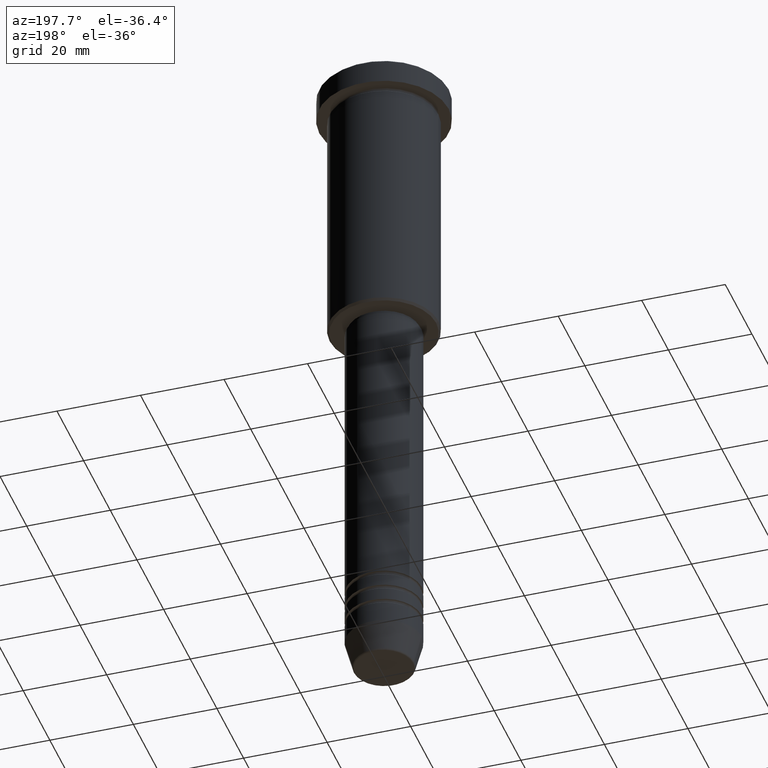
[diagram: clean part render]
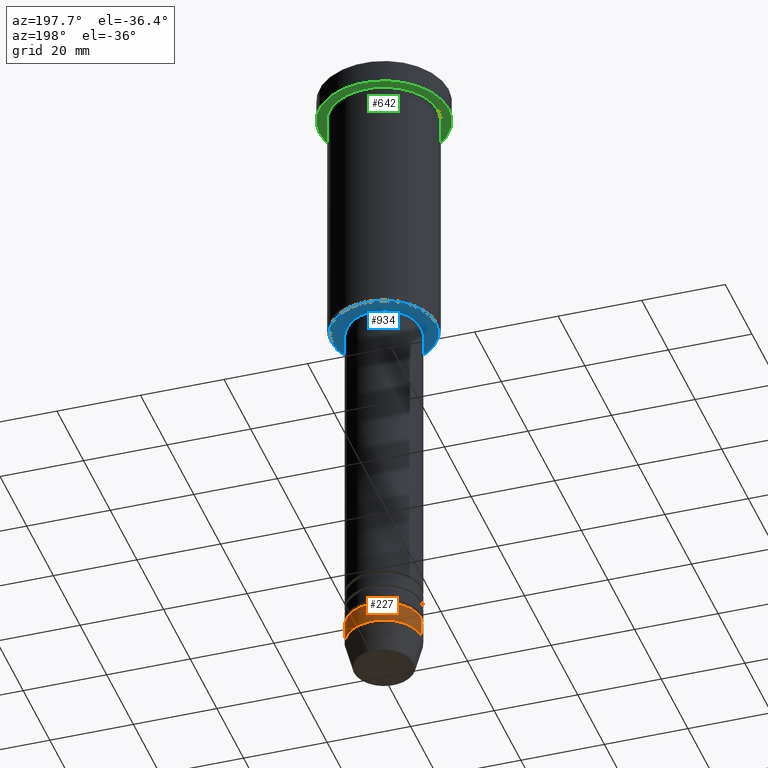
[diagram: same view with three faces highlighted in distinct colors, each labeled with its STEP entity id]
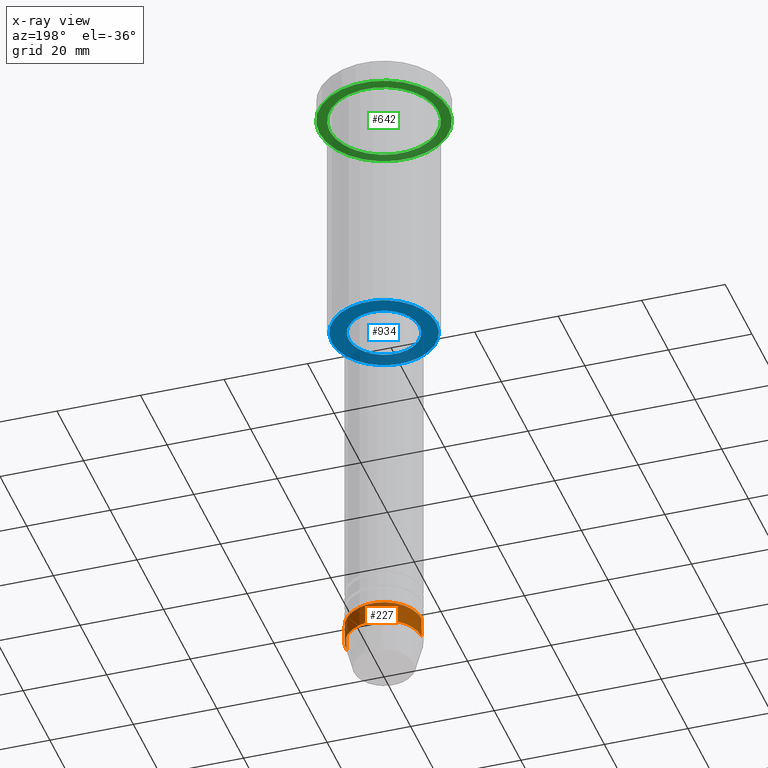
[diagram: x-ray of the same camera — body ghosted, the three highlighted faces saturated]
A machine part, auxiliary view with three faces highlighted in distinct colors.
The next image is the same camera in x-ray (body ghosted, the three faces saturated) — at least one of them is partly hidden behind the body in this view.
Their STEP definitions:

[orange] entity #227 — the highlighted cylindrical surface (partial cylindrical patch) has radius 9 mm, axis along (-0, -0, 1).
#20 = DIRECTION ( 'NONE',  ( 1.000000000000000000, 0.000000000000000000, 0.000000000000000000 ) ) ;
#150 = DIRECTION ( 'NONE',  ( -0.000000000000000000, -0.000000000000000000, 1.000000000000000000 ) ) ;
#172 = DIRECTION ( 'NONE',  ( -0.000000000000000000, -0.000000000000000000, 1.000000000000000000 ) ) ;
#223 = CARTESIAN_POINT ( 'NONE',  ( 9.000000000000000000, 0.000000000000000000, 0.000000000000000000 ) ) ;
#227 = ADVANCED_FACE ( 'NONE', ( #799 ), #1161, .T. ) ;
#242 = VERTEX_POINT ( 'NONE', #583 ) ;
#290 = CARTESIAN_POINT ( 'NONE',  ( -9.000000000000000000, 1.102182119232617714E-15, -154.0000000000000284 ) ) ;
#335 = DIRECTION ( 'NONE',  ( 1.000000000000000000, 0.000000000000000000, 0.000000000000000000 ) ) ;
#348 = DIRECTION ( 'NONE',  ( -0.000000000000000000, -0.000000000000000000, 1.000000000000000000 ) ) ;
#361 = DIRECTION ( 'NONE',  ( 1.000000000000000000, 0.000000000000000000, 0.000000000000000000 ) ) ;
#422 = AXIS2_PLACEMENT_3D ( 'NONE', #747, #485, #20 ) ;
#451 = AXIS2_PLACEMENT_3D ( 'NONE', #525, #348, #361 ) ;
#468 = EDGE_LOOP ( 'NONE', ( #843, #1114, #1038, #806 ) ) ;
#485 = DIRECTION ( 'NONE',  ( -0.000000000000000000, -0.000000000000000000, 1.000000000000000000 ) ) ;
#525 = CARTESIAN_POINT ( 'NONE',  ( 0.000000000000000000, 0.000000000000000000, 0.000000000000000000 ) ) ;
#533 = LINE ( 'NONE', #813, #914 ) ;
#579 = LINE ( 'NONE', #223, #1118 ) ;
#583 = CARTESIAN_POINT ( 'NONE',  ( -9.000000000000000000, 1.102182119232617714E-15, -149.0000000000000284 ) ) ;
#623 = EDGE_CURVE ( 'NONE', #1003, #811, #579, .T. ) ;
#708 = CARTESIAN_POINT ( 'NONE',  ( 9.000000000000000000, 0.000000000000000000, -154.0000000000000284 ) ) ;
#747 = CARTESIAN_POINT ( 'NONE',  ( 0.000000000000000000, 0.000000000000000000, -154.0000000000000284 ) ) ;
#779 = CARTESIAN_POINT ( 'NONE',  ( 9.000000000000000000, 0.000000000000000000, -149.0000000000000284 ) ) ;
#795 = EDGE_CURVE ( 'NONE', #811, #242, #1062, .T. ) ;
#799 = FACE_OUTER_BOUND ( 'NONE', #468, .T. ) ;
#806 = ORIENTED_EDGE ( 'NONE', *, *, #623, .F. ) ;
#811 = VERTEX_POINT ( 'NONE', #779 ) ;
#813 = CARTESIAN_POINT ( 'NONE',  ( -9.000000000000000000, 1.102182119232617714E-15, 0.000000000000000000 ) ) ;
#843 = ORIENTED_EDGE ( 'NONE', *, *, #1143, .T. ) ;
#914 = VECTOR ( 'NONE', #172, 1000.000000000000000 ) ;
#943 = EDGE_CURVE ( 'NONE', #1126, #242, #533, .T. ) ;
#948 = DIRECTION ( 'NONE',  ( -0.000000000000000000, -0.000000000000000000, 1.000000000000000000 ) ) ;
#986 = AXIS2_PLACEMENT_3D ( 'NONE', #1036, #150, #335 ) ;
#1003 = VERTEX_POINT ( 'NONE', #708 ) ;
#1022 = CIRCLE ( 'NONE', #422, 9.000000000000000000 ) ;
#1036 = CARTESIAN_POINT ( 'NONE',  ( 0.000000000000000000, 0.000000000000000000, -149.0000000000000284 ) ) ;
#1038 = ORIENTED_EDGE ( 'NONE', *, *, #795, .F. ) ;
#1062 = CIRCLE ( 'NONE', #986, 9.000000000000000000 ) ;
#1114 = ORIENTED_EDGE ( 'NONE', *, *, #943, .T. ) ;
#1118 = VECTOR ( 'NONE', #948, 1000.000000000000000 ) ;
#1126 = VERTEX_POINT ( 'NONE', #290 ) ;
#1143 = EDGE_CURVE ( 'NONE', #1003, #1126, #1022, .T. ) ;
#1161 = CYLINDRICAL_SURFACE ( 'NONE', #451, 9.000000000000000000 ) ;

[blue] entity #934 — the highlighted planar face has unit normal (0, 0, -1).
#8 = CARTESIAN_POINT ( 'NONE',  ( 8.500000000000000000, 0.000000000000000000, -66.00000000000002842 ) ) ;
#32 = EDGE_CURVE ( 'NONE', #113, #82, #886, .T. ) ;
#42 = FACE_BOUND ( 'NONE', #462, .T. ) ;
#45 = EDGE_LOOP ( 'NONE', ( #1044, #394 ) ) ;
#75 = AXIS2_PLACEMENT_3D ( 'NONE', #233, #616, #981 ) ;
#82 = VERTEX_POINT ( 'NONE', #639 ) ;
#104 = EDGE_CURVE ( 'NONE', #82, #113, #787, .T. ) ;
#105 = AXIS2_PLACEMENT_3D ( 'NONE', #621, #1066, #526 ) ;
#113 = VERTEX_POINT ( 'NONE', #370 ) ;
#233 = CARTESIAN_POINT ( 'NONE',  ( 0.000000000000000000, 0.000000000000000000, -66.00000000000002842 ) ) ;
#264 = CIRCLE ( 'NONE', #930, 8.500000000000000000 ) ;
#320 = DIRECTION ( 'NONE',  ( -1.000000000000000000, 0.000000000000000000, -0.000000000000000000 ) ) ;
#370 = CARTESIAN_POINT ( 'NONE',  ( 12.49999999999999645, 0.000000000000000000, -66.00000000000002842 ) ) ;
#394 = ORIENTED_EDGE ( 'NONE', *, *, #104, .T. ) ;
#414 = PLANE ( 'NONE',  #1155 ) ;
#462 = EDGE_LOOP ( 'NONE', ( #706, #974 ) ) ;
#507 = FACE_OUTER_BOUND ( 'NONE', #45, .T. ) ;
#526 = DIRECTION ( 'NONE',  ( -1.000000000000000000, 0.000000000000000000, 0.000000000000000000 ) ) ;
#534 = DIRECTION ( 'NONE',  ( -1.000000000000000000, 0.000000000000000000, 0.000000000000000000 ) ) ;
#580 = EDGE_CURVE ( 'NONE', #645, #1075, #987, .T. ) ;
#616 = DIRECTION ( 'NONE',  ( -0.000000000000000000, -0.000000000000000000, 1.000000000000000000 ) ) ;
#621 = CARTESIAN_POINT ( 'NONE',  ( 0.000000000000000000, 0.000000000000000000, -66.00000000000002842 ) ) ;
#628 = CARTESIAN_POINT ( 'NONE',  ( 0.000000000000000000, 0.000000000000000000, -66.00000000000002842 ) ) ;
#639 = CARTESIAN_POINT ( 'NONE',  ( -12.49999999999999645, 1.561424668912875308E-15, -66.00000000000002842 ) ) ;
#645 = VERTEX_POINT ( 'NONE', #1053 ) ;
#658 = DIRECTION ( 'NONE',  ( 1.000000000000000000, 0.000000000000000000, 0.000000000000000000 ) ) ;
#706 = ORIENTED_EDGE ( 'NONE', *, *, #1142, .T. ) ;
#751 = DIRECTION ( 'NONE',  ( -0.000000000000000000, -0.000000000000000000, 1.000000000000000000 ) ) ;
#772 = DIRECTION ( 'NONE',  ( 0.000000000000000000, 0.000000000000000000, -1.000000000000000000 ) ) ;
#787 = CIRCLE ( 'NONE', #105, 12.49999999999999645 ) ;
#834 = AXIS2_PLACEMENT_3D ( 'NONE', #628, #978, #534 ) ;
#845 = CARTESIAN_POINT ( 'NONE',  ( 0.000000000000000000, 0.000000000000000000, -66.00000000000002842 ) ) ;
#872 = CARTESIAN_POINT ( 'NONE',  ( 0.000000000000000000, 13.00000000000000000, -66.00000000000002842 ) ) ;
#886 = CIRCLE ( 'NONE', #834, 12.49999999999999645 ) ;
#930 = AXIS2_PLACEMENT_3D ( 'NONE', #845, #751, #658 ) ;
#934 = ADVANCED_FACE ( 'NONE', ( #507, #42 ), #414, .T. ) ;
#974 = ORIENTED_EDGE ( 'NONE', *, *, #580, .T. ) ;
#978 = DIRECTION ( 'NONE',  ( 0.000000000000000000, 0.000000000000000000, -1.000000000000000000 ) ) ;
#981 = DIRECTION ( 'NONE',  ( 1.000000000000000000, 0.000000000000000000, 0.000000000000000000 ) ) ;
#987 = CIRCLE ( 'NONE', #75, 8.500000000000000000 ) ;
#1044 = ORIENTED_EDGE ( 'NONE', *, *, #32, .T. ) ;
#1053 = CARTESIAN_POINT ( 'NONE',  ( -8.500000000000000000, 1.040949779275250140E-15, -66.00000000000002842 ) ) ;
#1066 = DIRECTION ( 'NONE',  ( 0.000000000000000000, 0.000000000000000000, -1.000000000000000000 ) ) ;
#1075 = VERTEX_POINT ( 'NONE', #8 ) ;
#1142 = EDGE_CURVE ( 'NONE', #1075, #645, #264, .T. ) ;
#1155 = AXIS2_PLACEMENT_3D ( 'NONE', #872, #772, #320 ) ;

[green] entity #642 — the highlighted planar face has unit normal (0, 0, -1).
#29 = EDGE_CURVE ( 'NONE', #372, #1012, #473, .T. ) ;
#34 = CARTESIAN_POINT ( 'NONE',  ( 0.000000000000000000, 0.000000000000000000, -5.999999999999995559 ) ) ;
#43 = DIRECTION ( 'NONE',  ( -0.000000000000000000, -0.000000000000000000, 1.000000000000000000 ) ) ;
#87 = CARTESIAN_POINT ( 'NONE',  ( 0.000000000000000000, 0.000000000000000000, -5.999999999999995559 ) ) ;
#93 = CARTESIAN_POINT ( 'NONE',  ( 0.000000000000000000, 0.000000000000000000, -5.999999999999995559 ) ) ;
#122 = DIRECTION ( 'NONE',  ( 0.000000000000000000, 0.000000000000000000, -1.000000000000000000 ) ) ;
#184 = DIRECTION ( 'NONE',  ( -0.000000000000000000, -0.000000000000000000, 1.000000000000000000 ) ) ;
#185 = CIRCLE ( 'NONE', #488, 15.50000000000000000 ) ;
#189 = EDGE_CURVE ( 'NONE', #1018, #491, #185, .T. ) ;
#200 = ORIENTED_EDGE ( 'NONE', *, *, #551, .F. ) ;
#245 = DIRECTION ( 'NONE',  ( -1.000000000000000000, 0.000000000000000000, 0.000000000000000000 ) ) ;
#252 = CARTESIAN_POINT ( 'NONE',  ( 15.50000000000000000, 0.000000000000000000, -5.999999999999995559 ) ) ;
#333 = EDGE_LOOP ( 'NONE', ( #993, #200 ) ) ;
#359 = ORIENTED_EDGE ( 'NONE', *, *, #29, .T. ) ;
#372 = VERTEX_POINT ( 'NONE', #1092 ) ;
#447 = DIRECTION ( 'NONE',  ( -1.000000000000000000, 0.000000000000000000, 0.000000000000000000 ) ) ;
#450 = CARTESIAN_POINT ( 'NONE',  ( 0.000000000000000000, 0.000000000000000000, -5.999999999999995559 ) ) ;
#473 = CIRCLE ( 'NONE', #735, 13.00000000000000000 ) ;
#484 = CARTESIAN_POINT ( 'NONE',  ( 0.000000000000000000, 15.50000000000000000, -5.999999999999995559 ) ) ;
#488 = AXIS2_PLACEMENT_3D ( 'NONE', #87, #545, #717 ) ;
#491 = VERTEX_POINT ( 'NONE', #885 ) ;
#493 = AXIS2_PLACEMENT_3D ( 'NONE', #484, #122, #961 ) ;
#518 = ORIENTED_EDGE ( 'NONE', *, *, #882, .T. ) ;
#537 = FACE_BOUND ( 'NONE', #953, .T. ) ;
#545 = DIRECTION ( 'NONE',  ( -0.000000000000000000, -0.000000000000000000, 1.000000000000000000 ) ) ;
#551 = EDGE_CURVE ( 'NONE', #491, #1018, #929, .T. ) ;
#587 = DIRECTION ( 'NONE',  ( 1.000000000000000000, 0.000000000000000000, 0.000000000000000000 ) ) ;
#627 = CARTESIAN_POINT ( 'NONE',  ( -13.00000000000000000, 0.000000000000000000, -5.999999999999994671 ) ) ;
#642 = ADVANCED_FACE ( 'NONE', ( #537, #903 ), #1082, .T. ) ;
#689 = CIRCLE ( 'NONE', #1137, 13.00000000000000000 ) ;
#717 = DIRECTION ( 'NONE',  ( 1.000000000000000000, 0.000000000000000000, 0.000000000000000000 ) ) ;
#735 = AXIS2_PLACEMENT_3D ( 'NONE', #93, #184, #447 ) ;
#763 = DIRECTION ( 'NONE',  ( -0.000000000000000000, -0.000000000000000000, 1.000000000000000000 ) ) ;
#882 = EDGE_CURVE ( 'NONE', #1012, #372, #689, .T. ) ;
#885 = CARTESIAN_POINT ( 'NONE',  ( -15.50000000000000000, 1.898202538678397557E-15, -5.999999999999995559 ) ) ;
#903 = FACE_OUTER_BOUND ( 'NONE', #333, .T. ) ;
#929 = CIRCLE ( 'NONE', #969, 15.50000000000000000 ) ;
#953 = EDGE_LOOP ( 'NONE', ( #518, #359 ) ) ;
#961 = DIRECTION ( 'NONE',  ( -1.000000000000000000, 0.000000000000000000, -0.000000000000000000 ) ) ;
#969 = AXIS2_PLACEMENT_3D ( 'NONE', #450, #43, #587 ) ;
#993 = ORIENTED_EDGE ( 'NONE', *, *, #189, .F. ) ;
#1012 = VERTEX_POINT ( 'NONE', #627 ) ;
#1018 = VERTEX_POINT ( 'NONE', #252 ) ;
#1082 = PLANE ( 'NONE',  #493 ) ;
#1092 = CARTESIAN_POINT ( 'NONE',  ( 13.00000000000000000, 1.592040838891559095E-15, -5.999999999999994671 ) ) ;
#1137 = AXIS2_PLACEMENT_3D ( 'NONE', #34, #763, #245 ) ;